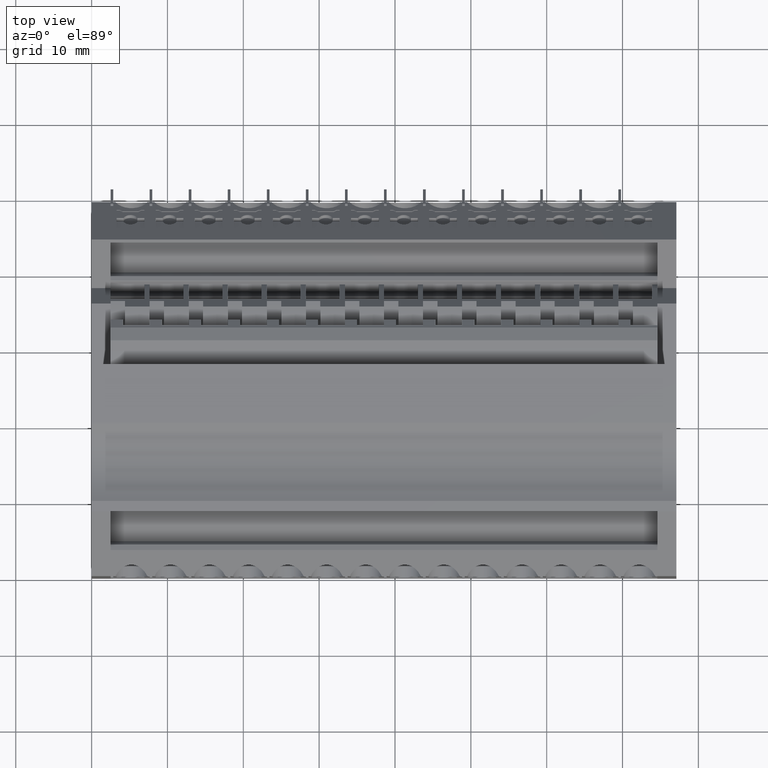
[diagram: clean part render]
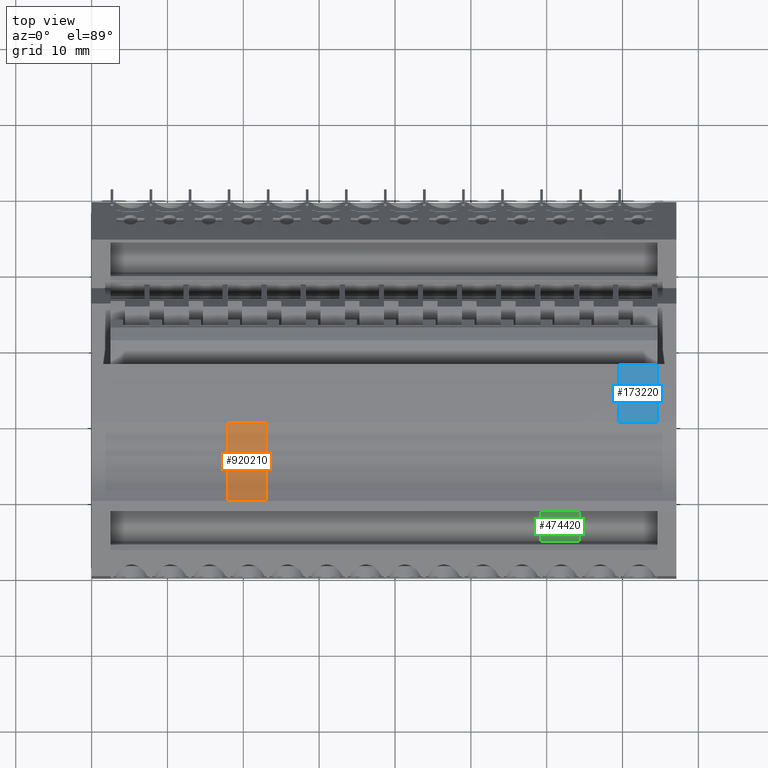
[diagram: same view with three faces highlighted in distinct colors, each labeled with its STEP entity id]
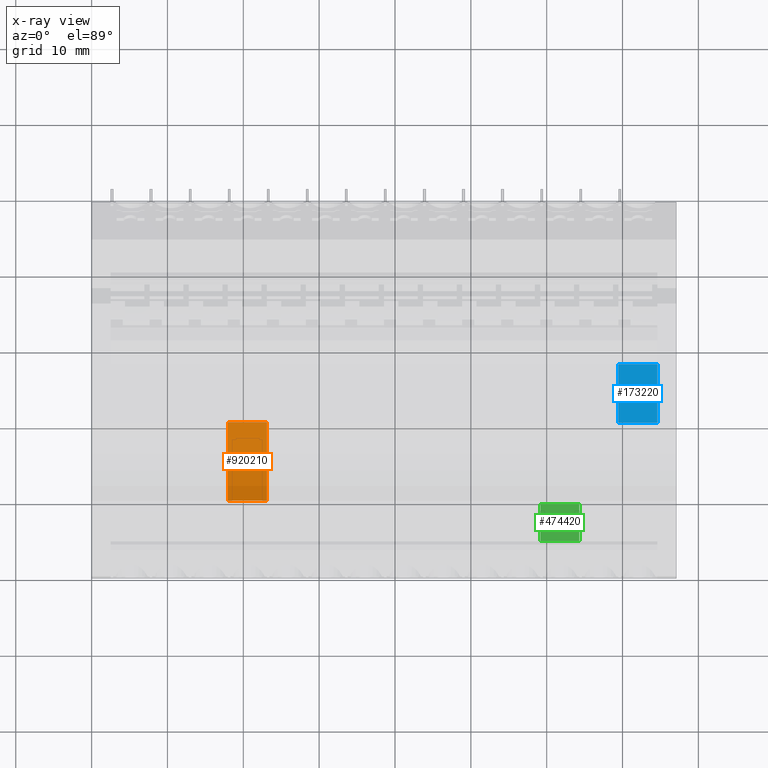
[diagram: x-ray of the same camera — body ghosted, the three highlighted faces saturated]
A machine part, top view with three faces highlighted in distinct colors.
The next image is the same camera in x-ray (body ghosted, the three faces saturated) — at least one of them is partly hidden behind the body in this view.
Their STEP definitions:

[orange] entity #920210 — the highlighted cylindrical surface (partial cylindrical patch) has radius 10 mm, axis along (1, 0, -0).
#66320=CARTESIAN_POINT('',(440.590572543565,697.534347620336,
82.9450001635446));
#66330=DIRECTION('',(3.65710502038586E-10,4.95141851786755E-10,1.));
#66340=VECTOR('',#66330,1.);
#66350=LINE('',#66320,#66340);
#99410=CARTESIAN_POINT('',(430.260883799414,697.534347634237,
82.9450001673223));
#99420=DIRECTION('',(3.65710502038586E-10,4.95141851786755E-10,1.));
#99430=VECTOR('',#99420,1.);
#99440=LINE('',#99410,#99430);
#105910=CARTESIAN_POINT('',(435.425728183013,706.097313387596,
82.9450001611936));
#105920=DIRECTION('',(3.65710502038586E-10,4.95141851786755E-10,1.));
#105930=DIRECTION('',(-0.386155668810907,-0.922433628747999,
5.97956747321646E-10));
#105940=AXIS2_PLACEMENT_3D('',#105910,#105920,#105930);
#105950=CYLINDRICAL_SURFACE('',#105940,10.);
#745620=CARTESIAN_POINT('',(430.260883800242,697.534347639998,
88.7199999840404));
#745630=VERTEX_POINT('',#745620);
#745680=CARTESIAN_POINT('',(435.425728185125,706.097313390455,
88.7199999786188));
#745690=DIRECTION('',(3.65710502038586E-10,4.95141851786755E-10,1.));
#745700=DIRECTION('',(-0.386155668810907,-0.922433628747999,
5.97956728772318E-10));
#745710=AXIS2_PLACEMENT_3D('',#745680,#745690,#745700);
#745720=CIRCLE('',#745710,10.);
#745730=CARTESIAN_POINT('',(440.590572545677,697.534347627362,
88.7199999832219));
#745740=VERTEX_POINT('',#745730);
#745750=EDGE_CURVE('',#745630,#745740,#745720,.T.);
#892360=CARTESIAN_POINT('',(430.260883798556,697.534347635201,
83.5699999847475));
#892370=VERTEX_POINT('',#892360);
#904450=CARTESIAN_POINT('',(440.590572545468,697.534347621655,
83.5699999809698));
#904460=VERTEX_POINT('',#904450);
#904470=EDGE_CURVE('',#904460,#745740,#66350,.T.);
#904650=EDGE_CURVE('',#892370,#745630,#99440,.T.);
#920090=ORIENTED_EDGE('',*,*,#904650,.T.);
#920100=CARTESIAN_POINT('',(435.425728183241,706.097313387905,
83.5699999786187));
#920110=DIRECTION('',(3.65710502038586E-10,4.95141851786755E-10,1.));
#920120=DIRECTION('',(-0.386155668810907,-0.922433628747999,
5.97956728772318E-10));
#920130=AXIS2_PLACEMENT_3D('',#920100,#920110,#920120);
#920140=CIRCLE('',#920130,10.);
#920150=EDGE_CURVE('',#892370,#904460,#920140,.T.);
#920160=ORIENTED_EDGE('',*,*,#920150,.F.);
#920170=ORIENTED_EDGE('',*,*,#904470,.F.);
#920180=ORIENTED_EDGE('',*,*,#745750,.T.);
#920190=EDGE_LOOP('',(#920180,#920170,#920160,#920090));
#920200=FACE_OUTER_BOUND('',#920190,.T.);
#920210=ADVANCED_FACE('',(#920200),#105950,.F.);

[blue] entity #173220 — the highlighted planar face has unit normal (0, -0, 1).
#66090=CARTESIAN_POINT('',(454.260324169573,697.534347599169,
68.1199999817189));
#66100=DIRECTION('',(1.20456367097695E-9,1.,-5.69281446053159E-10));
#66110=DIRECTION('',(1.,-1.20456367103121E-9,-9.53018157247533E-11));
#66120=AXIS2_PLACEMENT_3D('',#66090,#66100,#66110);
#66130=PLANE('',#66120);
#66140=CARTESIAN_POINT('',(448.253158793919,697.534347612595,
88.7199999827284));
#66150=DIRECTION('',(9.42661032482955E-11,-5.6928153239199E-10,-1.));
#66160=VECTOR('',#66150,1.);
#66170=LINE('',#66140,#66160);
#66320=CARTESIAN_POINT('',(440.590572543565,697.534347620336,
82.9450001635446));
#66330=DIRECTION('',(3.65710502038586E-10,4.95141851786755E-10,1.));
#66340=VECTOR('',#66330,1.);
#66350=LINE('',#66320,#66340);
#172960=CARTESIAN_POINT('',(448.253158827872,697.53434764745,
140.21999997152));
#172970=VERTEX_POINT('',#172960);
#172980=CARTESIAN_POINT('',(448.25315881091,697.534347638981,
135.069999982615));
#172990=VERTEX_POINT('',#172980);
#173000=EDGE_CURVE('',#172970,#172990,#66170,.T.);
#173010=ORIENTED_EDGE('',*,*,#173000,.T.);
#173020=CARTESIAN_POINT('',(459.468902491312,697.53434763394,
140.219999970496));
#173030=DIRECTION('',(-1.,1.20456350449778E-9,1.66699003060571E-10));
#173040=VECTOR('',#173030,1.);
#173050=LINE('',#173020,#173040);
#173060=CARTESIAN_POINT('',(440.590572558038,697.53434764479,
140.219999972653));
#173070=VERTEX_POINT('',#173060);
#173080=EDGE_CURVE('',#172970,#173070,#173050,.T.);
#173090=ORIENTED_EDGE('',*,*,#173080,.F.);
#173100=CARTESIAN_POINT('',(440.590572565991,697.534347648173,
135.06999998097));
#173110=VERTEX_POINT('',#173100);
#173120=EDGE_CURVE('',#173110,#173070,#66350,.T.);
#173130=ORIENTED_EDGE('',*,*,#173120,.T.);
#173140=CARTESIAN_POINT('',(409.368902568011,697.534347691357,
135.069999985695));
#173150=DIRECTION('',(1.,-1.2045636710312E-9,-7.92260575924487E-11));
#173160=VECTOR('',#173150,1.);
#173170=LINE('',#173140,#173160);
#173180=EDGE_CURVE('',#173110,#172990,#173170,.T.);
#173190=ORIENTED_EDGE('',*,*,#173180,.F.);
#173200=EDGE_LOOP('',(#173190,#173130,#173090,#173010));
#173210=FACE_OUTER_BOUND('',#173200,.T.);
#173220=ADVANCED_FACE('',(#173210),#66130,.T.);

[green] entity #474420 — the highlighted planar face has unit normal (-0, 0.6428, -0.766).
#23470=CARTESIAN_POINT('',(425.016896212252,692.123078486407,
85.2749975710628));
#23480=DIRECTION('',(1.6669925506053E-10,4.90742847764455E-10,1.));
#23490=VECTOR('',#23480,1.);
#23500=LINE('',#23470,#23490);
#23510=CARTESIAN_POINT('',(425.016896218836,692.123078505789,
124.769999987623));
#23520=VERTEX_POINT('',#23510);
#72990=CARTESIAN_POINT('',(429.86212731812,696.188710113931,
85.2749975682599));
#73000=DIRECTION('',(0.642787609094791,-0.766044443615514,
2.68778616175774E-10));
#73010=DIRECTION('',(-0.766044443615514,-0.642787609094791,
4.43142362006131E-10));
#73020=AXIS2_PLACEMENT_3D('',#72990,#73000,#73010);
#73030=PLANE('',#73020);
#73180=CARTESIAN_POINT('',(429.86212731812,696.188710113931,
85.2749975682599));
#73190=DIRECTION('',(1.6669925506053E-10,4.90742847764455E-10,1.));
#73200=VECTOR('',#73190,1.);
#73210=LINE('',#73180,#73200);
#205960=CARTESIAN_POINT('',(429.862127324704,696.188710133313,
124.76999998486));
#205970=VERTEX_POINT('',#205960);
#206000=CARTESIAN_POINT('',(419.450735293513,687.452514933604,
124.769999990798));
#206010=DIRECTION('',(-0.766044443615514,-0.642787609094791,
4.36950297750633E-10));
#206020=VECTOR('',#206010,1.);
#206030=LINE('',#206000,#206020);
#206040=EDGE_CURVE('',#205970,#23520,#206030,.T.);
#324460=CARTESIAN_POINT('',(429.862127325563,696.188710135841,
129.919999984742));
#324470=VERTEX_POINT('',#324460);
#424210=CARTESIAN_POINT('',(425.016896219694,692.123078508316,
129.919999987506));
#424220=VERTEX_POINT('',#424210);
#424270=CARTESIAN_POINT('',(419.450735293763,687.452514935621,
129.919999990681));
#424280=DIRECTION('',(0.766044443615514,0.642787609094791,
-4.36950297750633E-10));
#424290=VECTOR('',#424280,1.);
#424300=LINE('',#424270,#424290);
#424310=EDGE_CURVE('',#424220,#324470,#424300,.T.);
#474340=EDGE_CURVE('',#23520,#424220,#23500,.T.);
#474350=ORIENTED_EDGE('',*,*,#474340,.T.);
#474360=ORIENTED_EDGE('',*,*,#206040,.T.);
#474370=EDGE_CURVE('',#205970,#324470,#73210,.T.);
#474380=ORIENTED_EDGE('',*,*,#474370,.F.);
#474390=ORIENTED_EDGE('',*,*,#424310,.T.);
#474400=EDGE_LOOP('',(#474390,#474380,#474360,#474350));
#474410=FACE_OUTER_BOUND('',#474400,.T.);
#474420=ADVANCED_FACE('',(#474410),#73030,.F.);